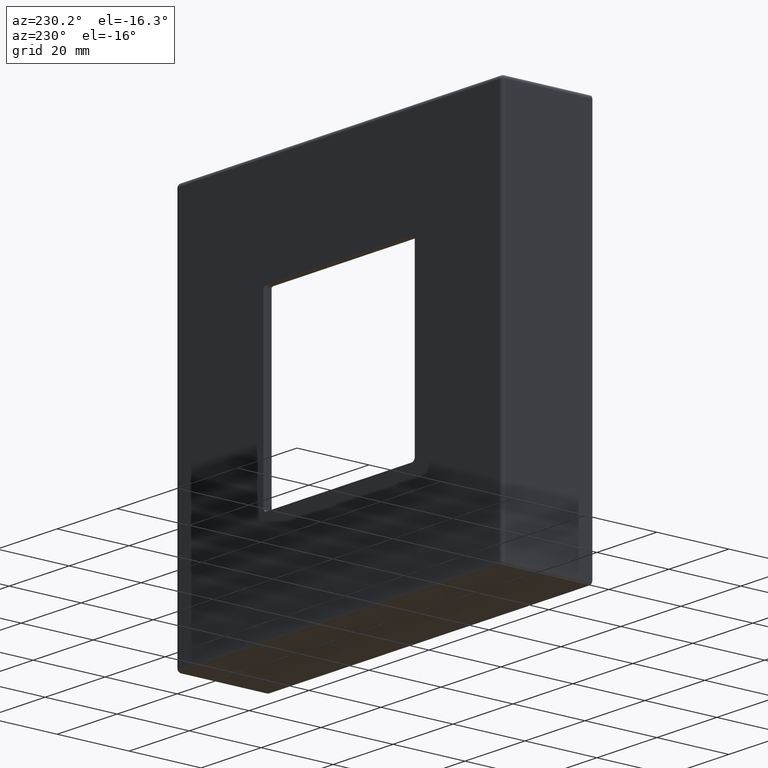
[diagram: clean part render]
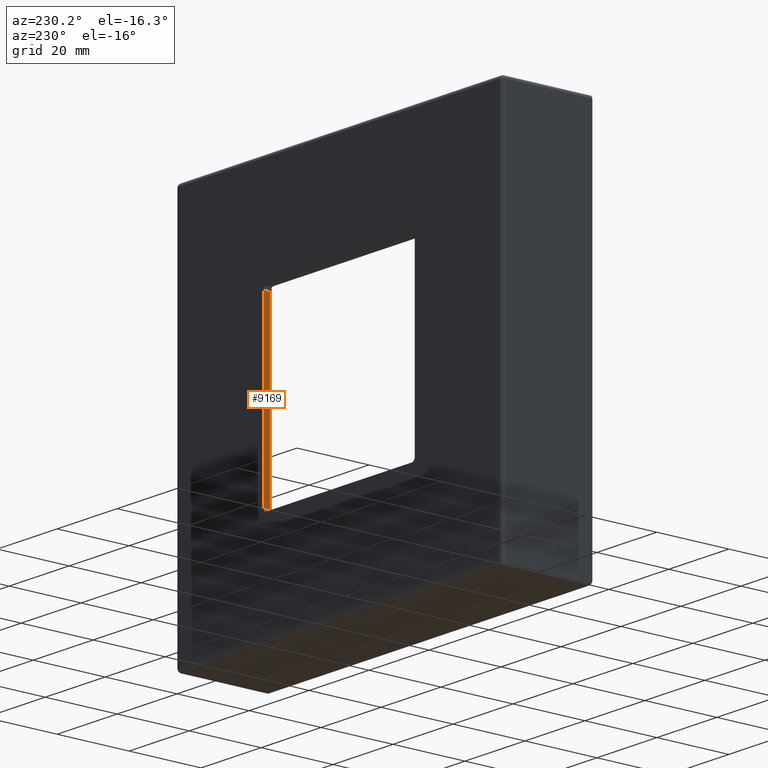
[diagram: same view with one face highlighted and labeled with its STEP entity id]
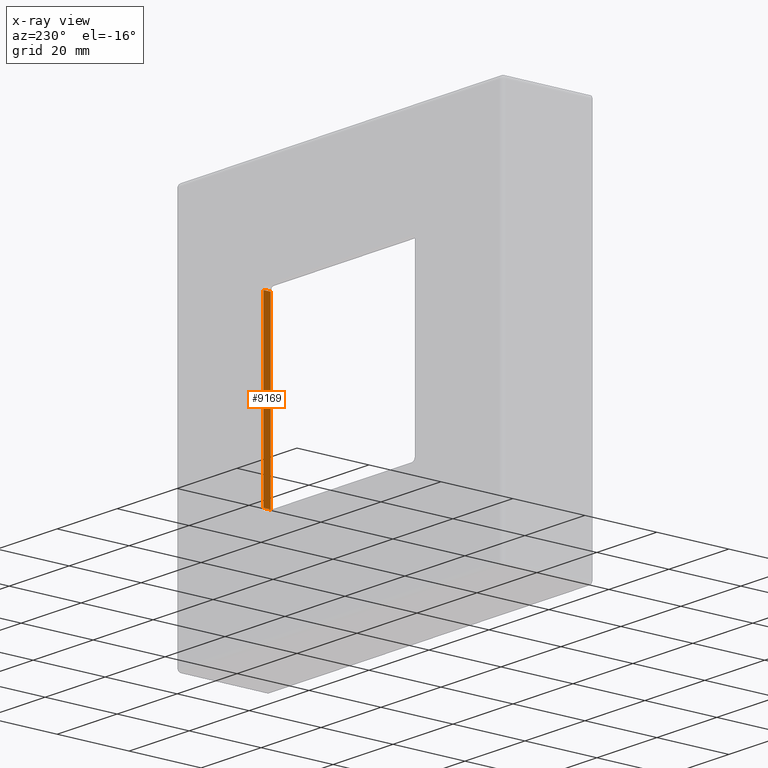
[diagram: x-ray of the same camera — body ghosted, the highlighted face saturated]
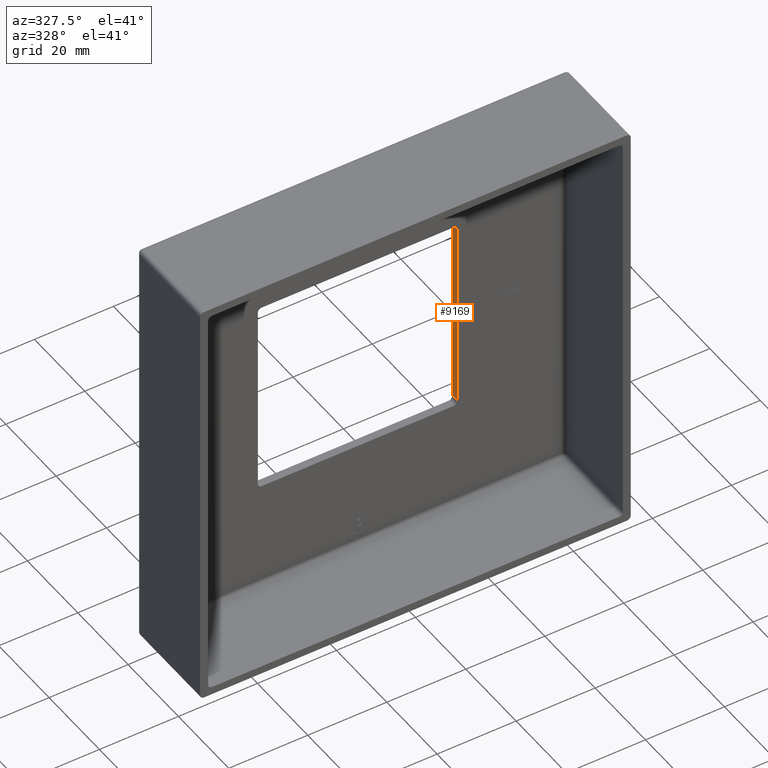
[diagram: same view with one face highlighted and labeled with its STEP entity id]
A machine part, auxiliary view. The second image highlights one B-rep face of the part: STEP entity #9169.
The next image is the same camera in x-ray: the body ghosted, the highlighted face saturated — about 0% of this face is hidden behind the body in this view.
A second angle (auxiliary view) of the same face is appended — the face is thin or edge-on in the first view.
In plain terms, the highlighted planar face has unit normal (1, 0, -0).
Its self-contained STEP definition (entity closure, byte-faithful):
#645 = EDGE_CURVE ( 'NONE', #15797, #8806, #3865, .T. ) ;
#2977 = CARTESIAN_POINT ( 'NONE',  ( 25.24999999999999289, 25.00000000000000000, -24.25000000000000000 ) ) ;
#3036 = EDGE_CURVE ( 'NONE', #8910, #8806, #5331, .T. ) ;
#3865 = LINE ( 'NONE', #14494, #15534 ) ;
#3990 = ORIENTED_EDGE ( 'NONE', *, *, #645, .F. ) ;
#4045 = CARTESIAN_POINT ( 'NONE',  ( 25.24999999999999289, 23.00000000000000000, -24.25000000000000000 ) ) ;
#4236 = CARTESIAN_POINT ( 'NONE',  ( 25.25000000000000355, 25.00000000000000000, 24.25000000000000000 ) ) ;
#4497 = DIRECTION ( 'NONE',  ( 0.000000000000000000, -1.000000000000000000, -0.000000000000000000 ) ) ;
#4548 = CARTESIAN_POINT ( 'NONE',  ( 25.24999999999999289, 23.00000000000000000, -24.25000000000000000 ) ) ;
#4836 = ORIENTED_EDGE ( 'NONE', *, *, #3036, .T. ) ;
#4923 = VERTEX_POINT ( 'NONE', #4236 ) ;
#5331 = LINE ( 'NONE', #4548, #11667 ) ;
#6565 = DIRECTION ( 'NONE',  ( -2.748076793626625076E-16, 0.000000000000000000, -1.000000000000000000 ) ) ;
#6880 = DIRECTION ( 'NONE',  ( -0.000000000000000000, 1.000000000000000000, 0.000000000000000000 ) ) ;
#8347 = DIRECTION ( 'NONE',  ( -2.748076793626625076E-16, -0.000000000000000000, -1.000000000000000000 ) ) ;
#8806 = VERTEX_POINT ( 'NONE', #4045 ) ;
#8910 = VERTEX_POINT ( 'NONE', #2977 ) ;
#9169 = ADVANCED_FACE ( 'NONE', ( #13063 ), #16110, .F. ) ;
#9910 = EDGE_CURVE ( 'NONE', #15797, #4923, #14537, .T. ) ;
#10828 = DIRECTION ( 'NONE',  ( 1.000000000000000000, 0.000000000000000000, -2.748076793626625076E-16 ) ) ;
#11164 = EDGE_CURVE ( 'NONE', #4923, #8910, #14735, .T. ) ;
#11667 = VECTOR ( 'NONE', #4497, 1000.000000000000000 ) ;
#12297 = CARTESIAN_POINT ( 'NONE',  ( 25.25000000000000355, 23.00000000000000000, 24.25000000000000000 ) ) ;
#13063 = FACE_OUTER_BOUND ( 'NONE', #15560, .T. ) ;
#13156 = ORIENTED_EDGE ( 'NONE', *, *, #9910, .T. ) ;
#13357 = ORIENTED_EDGE ( 'NONE', *, *, #11164, .T. ) ;
#14494 = CARTESIAN_POINT ( 'NONE',  ( 25.24999999999999645, 23.00000000000000000, -6.938893903907227589E-15 ) ) ;
#14537 = LINE ( 'NONE', #16489, #14972 ) ;
#14626 = CARTESIAN_POINT ( 'NONE',  ( 25.24999999999999289, 0.000000000000000000, -25.25000000000000000 ) ) ;
#14735 = LINE ( 'NONE', #16544, #16861 ) ;
#14972 = VECTOR ( 'NONE', #6880, 1000.000000000000000 ) ;
#15534 = VECTOR ( 'NONE', #17235, 1000.000000000000000 ) ;
#15560 = EDGE_LOOP ( 'NONE', ( #13357, #4836, #3990, #13156 ) ) ;
#15797 = VERTEX_POINT ( 'NONE', #12297 ) ;
#16110 = PLANE ( 'NONE',  #16631 ) ;
#16489 = CARTESIAN_POINT ( 'NONE',  ( 25.25000000000000355, 25.00000000000000000, 24.25000000000000000 ) ) ;
#16544 = CARTESIAN_POINT ( 'NONE',  ( 25.24999999999999289, 25.00000000000000000, -25.25000000000000000 ) ) ;
#16631 = AXIS2_PLACEMENT_3D ( 'NONE', #14626, #10828, #6565 ) ;
#16861 = VECTOR ( 'NONE', #8347, 1000.000000000000000 ) ;
#17235 = DIRECTION ( 'NONE',  ( -2.748076793626625076E-16, 0.000000000000000000, -1.000000000000000000 ) ) ;